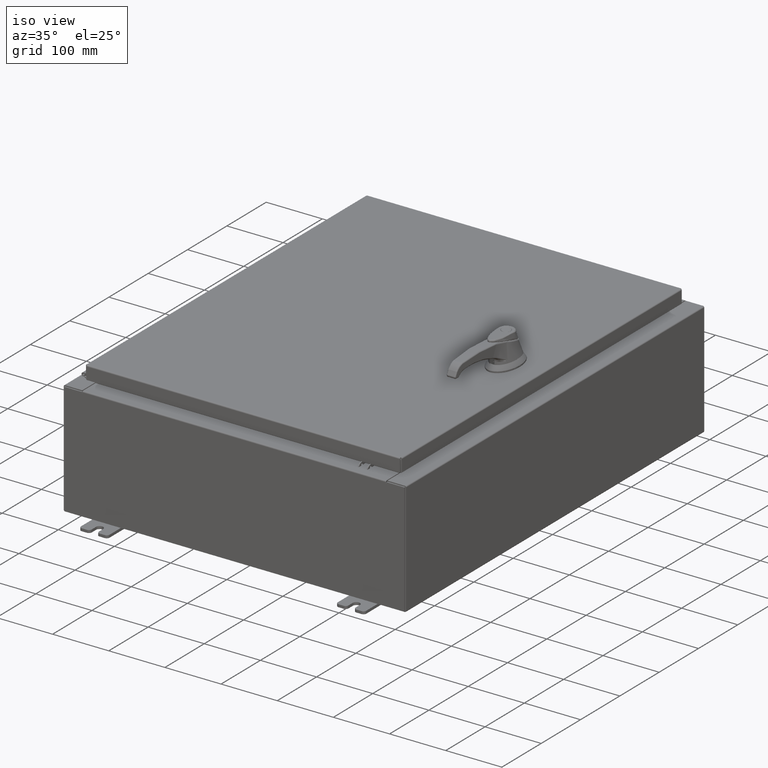
[diagram: clean part render]
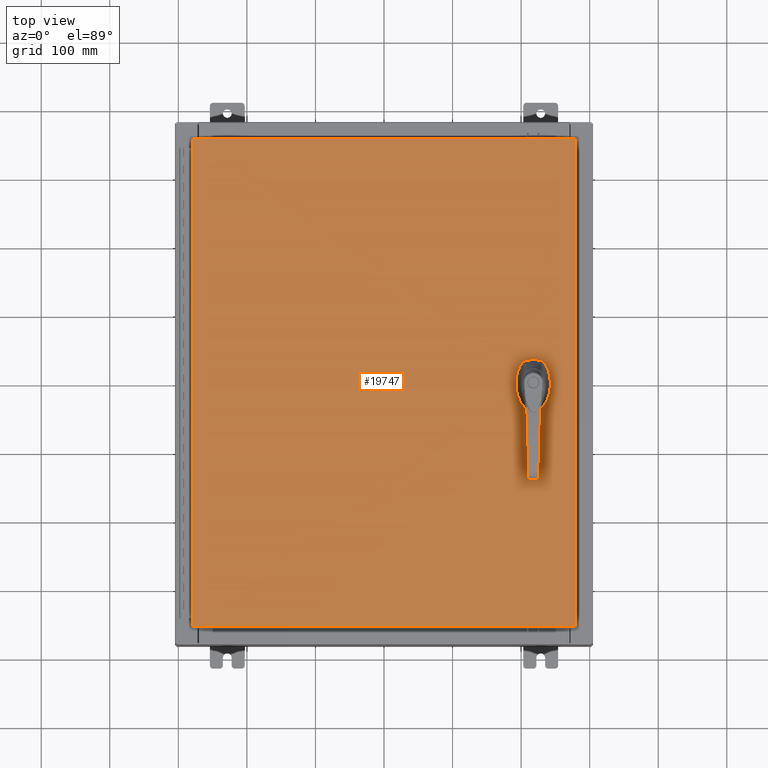
[diagram: tour spotlight — one face highlighted and labeled with its STEP entity id]
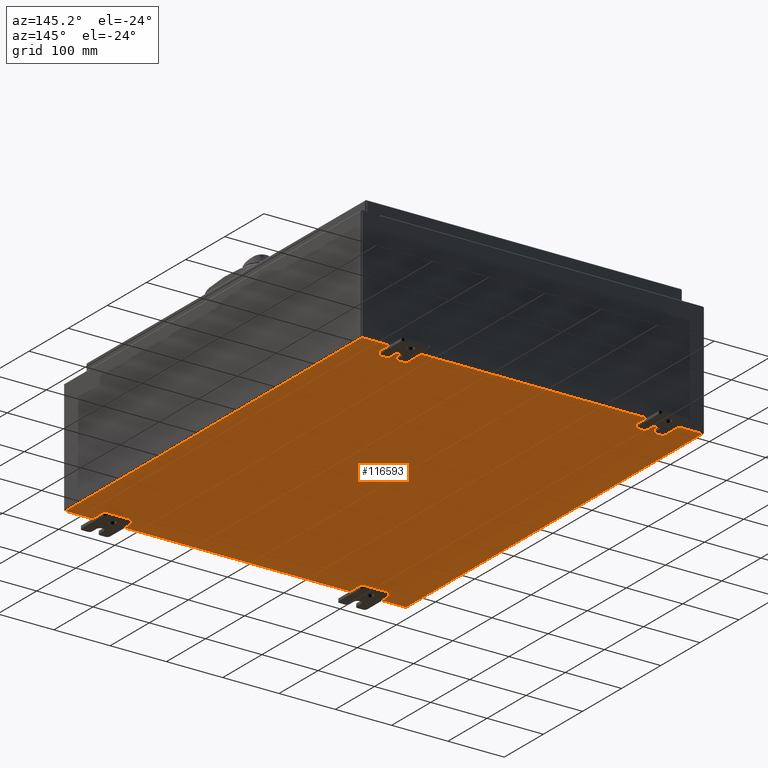
[diagram: tour spotlight — one face highlighted and labeled with its STEP entity id]
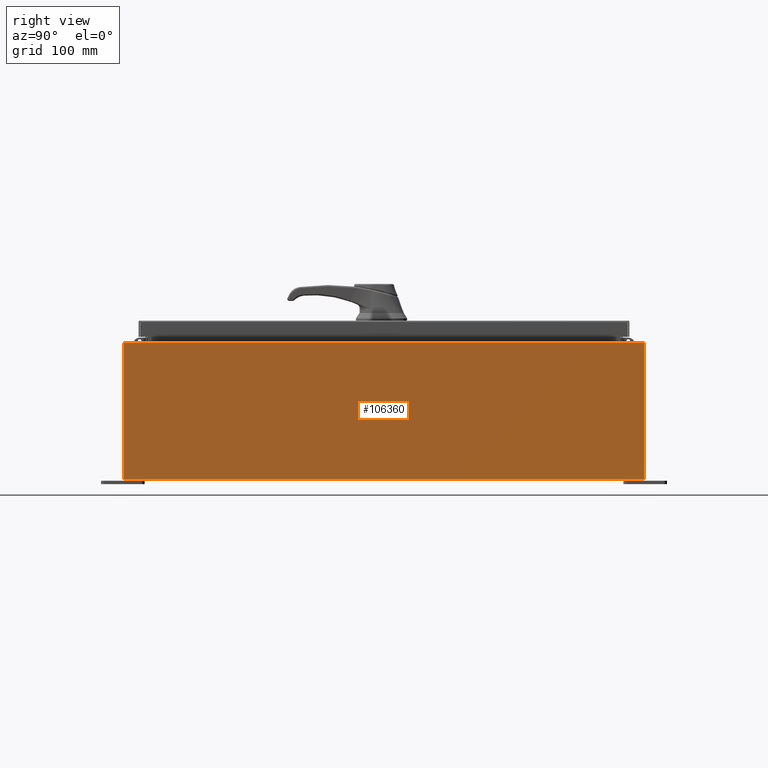
[diagram: tour spotlight — one face highlighted and labeled with its STEP entity id]
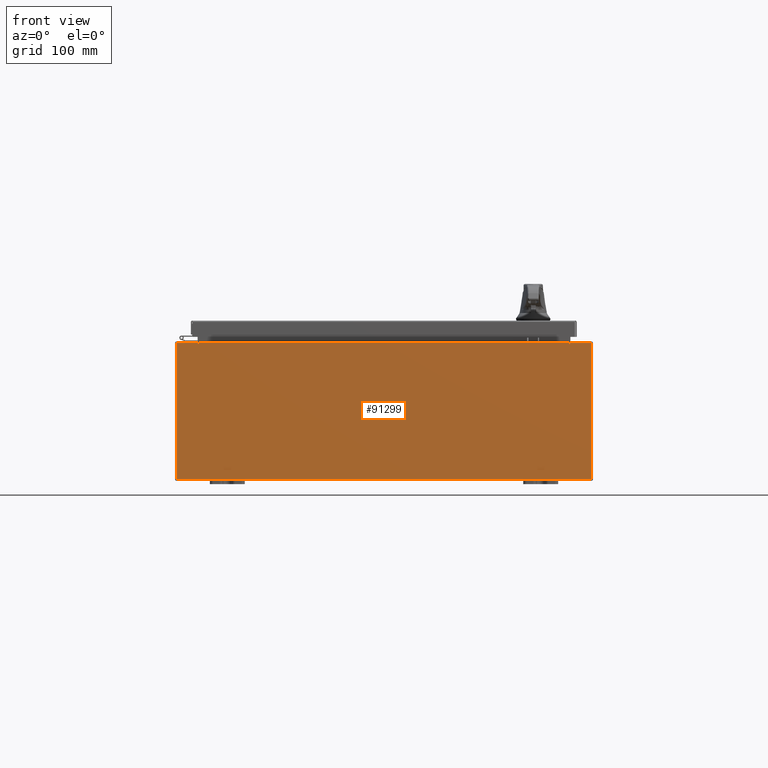
[diagram: tour spotlight — one face highlighted and labeled with its STEP entity id]
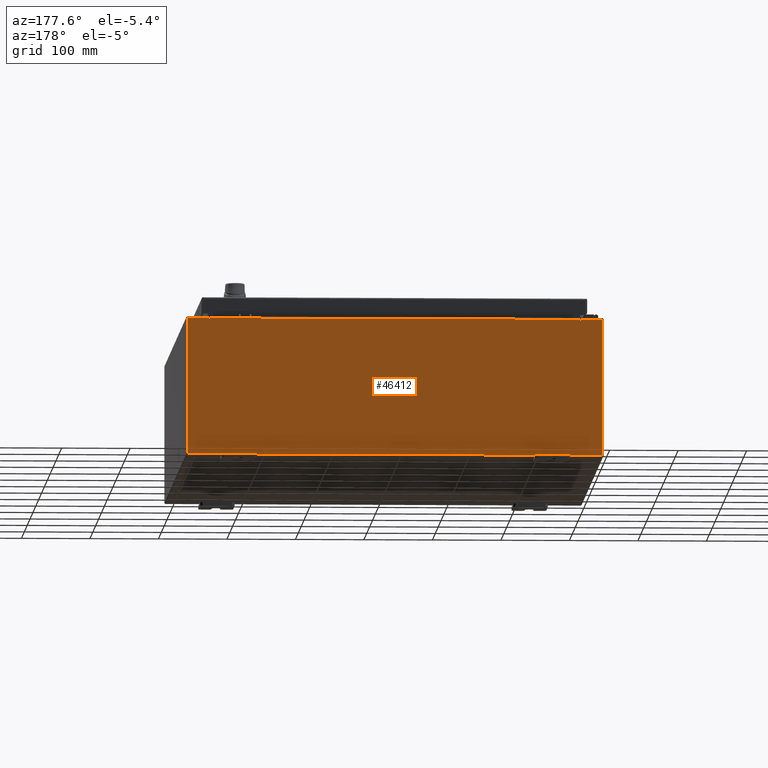
[diagram: tour spotlight — one face highlighted and labeled with its STEP entity id]
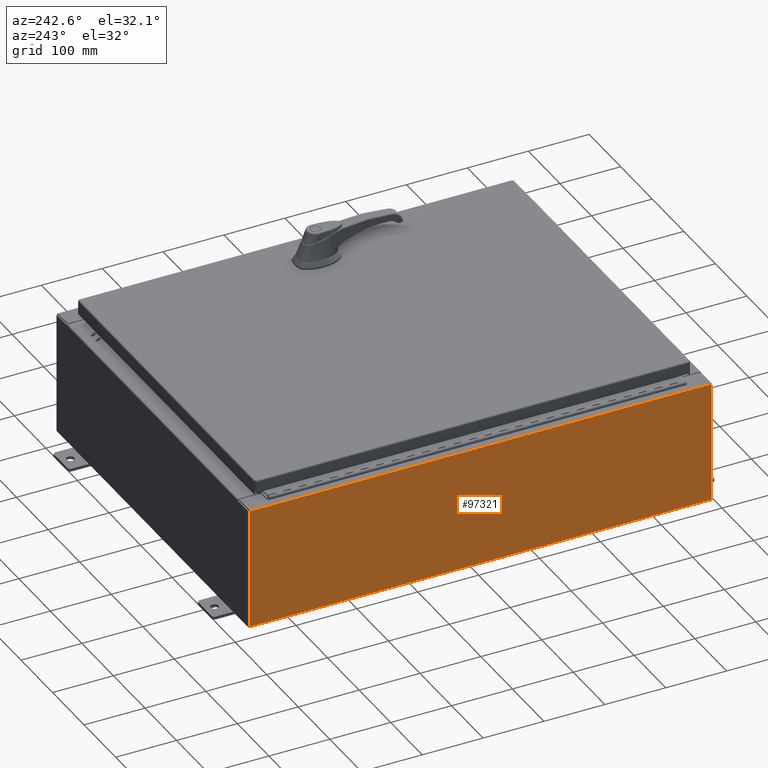
[diagram: tour spotlight — one face highlighted and labeled with its STEP entity id]
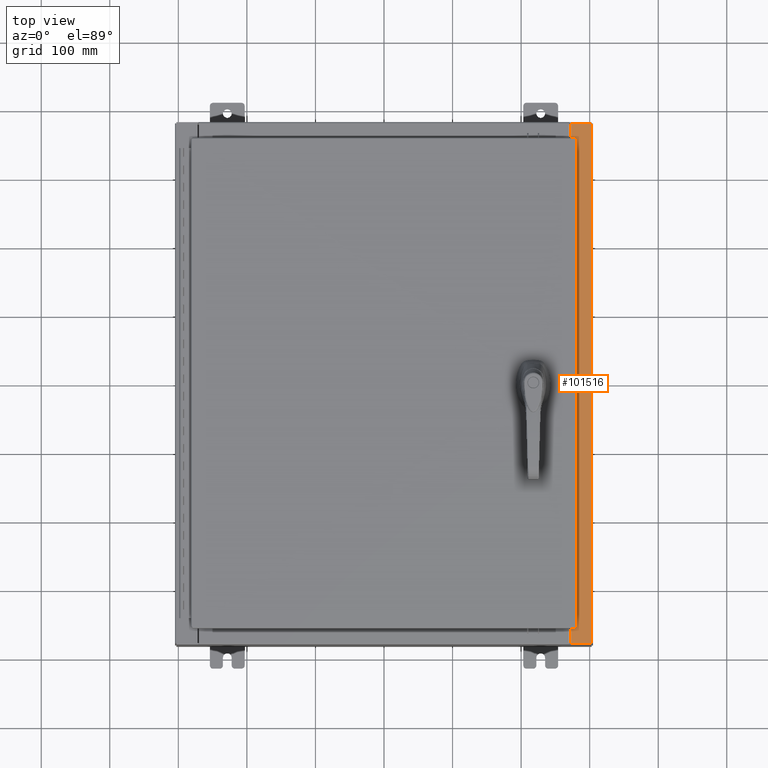
[diagram: tour spotlight — one face highlighted and labeled with its STEP entity id]
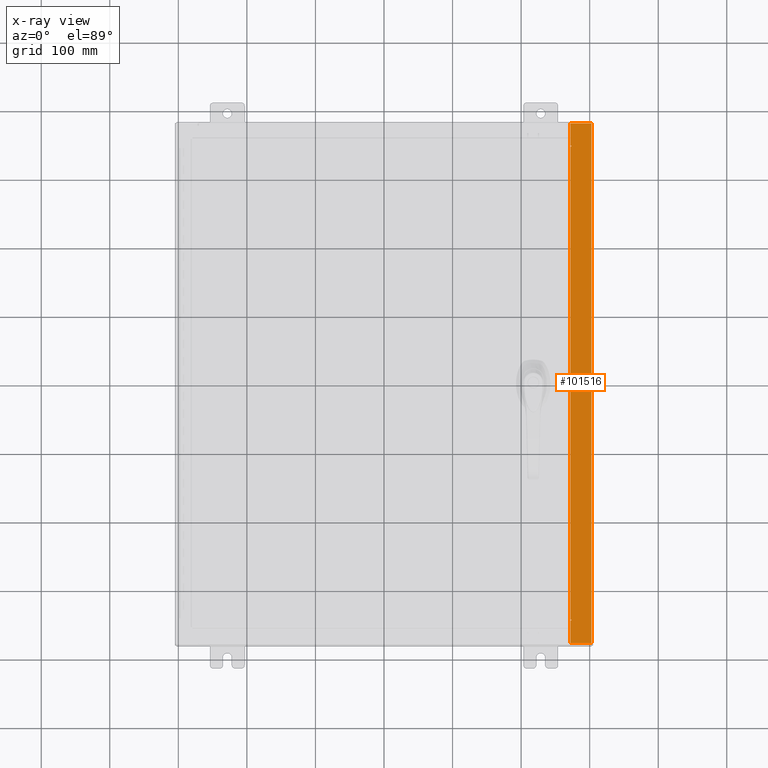
[diagram: x-ray of the same camera — body ghosted, this tour face saturated]
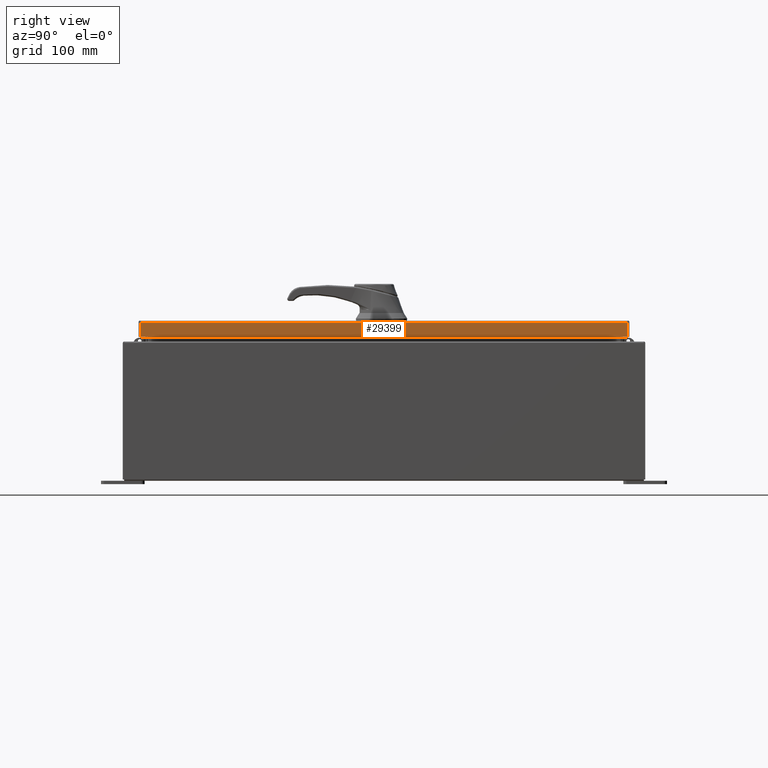
[diagram: tour spotlight — one face highlighted and labeled with its STEP entity id]
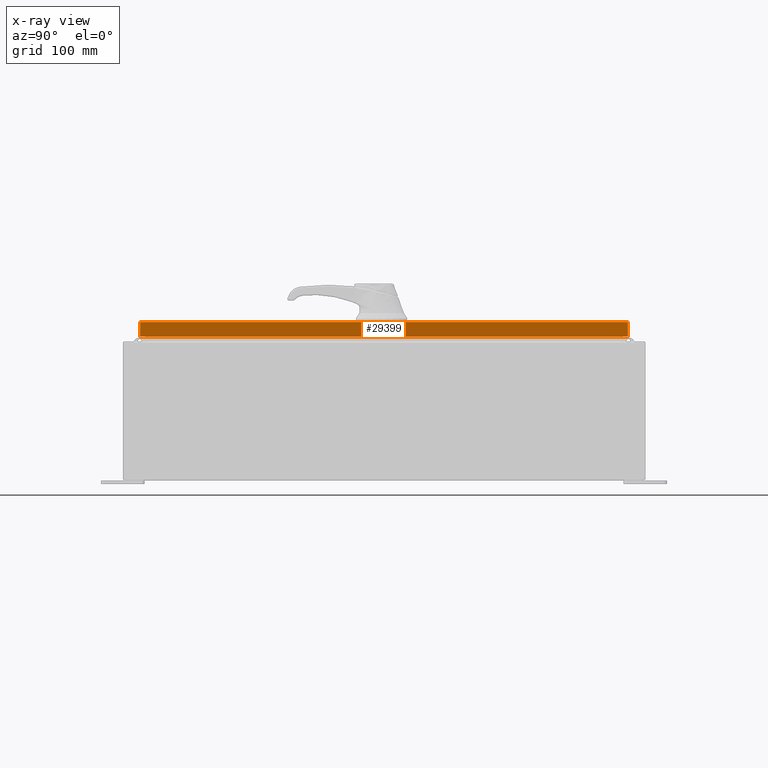
[diagram: x-ray of the same camera — body ghosted, this tour face saturated]
A machine part: a face-by-face anatomy tour. The part has 2576 B-rep faces; the first image is the clean iso view, then the 8 largest visible faces are spotlighted one at a time (largest first), each with its STEP entity span.

Face 1 — top view, entity #19747. In plain terms, the highlighted planar face has unit normal (0, 0, -1).
Definition (entity closure, byte-faithful):
#1146 = ORIENTED_EDGE ( 'NONE', *, *, #32073, .T. ) ;
#1298 = LINE ( 'NONE', #5075, #19613 ) ;
#1514 = CARTESIAN_POINT ( 'NONE',  ( 8.577999999999999400, 0.0000000000000000000, 0.0000000000000000000 ) ) ;
#2604 = VERTEX_POINT ( 'NONE', #5921 ) ;
#2879 = CARTESIAN_POINT ( 'NONE',  ( 8.577999999999999400, 0.0000000000000000000, 0.0000000000000000000 ) ) ;
#3645 = VERTEX_POINT ( 'NONE', #24648 ) ;
#4436 = DIRECTION ( 'NONE',  ( -0.0000000000000000000, 0.0000000000000000000, 1.000000000000000000 ) ) ;
#5075 = CARTESIAN_POINT ( 'NONE',  ( 0.0000000000000000000, -0.4029999999999252000, 0.0000000000000000000 ) ) ;
#5260 = CARTESIAN_POINT ( 'NONE',  ( 10.99030000000000000, -14.00629999999999800, -2.048885995248197400E-016 ) ) ;
#5636 = CARTESIAN_POINT ( 'NONE',  ( 8.577999999999999400, -1.338000000000000100, 0.0000000000000000000 ) ) ;
#5921 = CARTESIAN_POINT ( 'NONE',  ( 8.749500000000001200, -1.338000000000000100, 0.0000000000000000000 ) ) ;
#6168 = ORIENTED_EDGE ( 'NONE', *, *, #11841, .T. ) ;
#10559 = DIRECTION ( 'NONE',  ( 1.000000000000000000, 0.0000000000000000000, 0.0000000000000000000 ) ) ;
#11715 = EDGE_CURVE ( 'NONE', #95868, #3645, #48080, .T. ) ;
#11841 = EDGE_CURVE ( 'NONE', #28561, #17537, #84912, .T. ) ;
#11924 = DIRECTION ( 'NONE',  ( 1.000000000000000000, 0.0000000000000000000, 0.0000000000000000000 ) ) ;
#13569 = AXIS2_PLACEMENT_3D ( 'NONE', #5636, #68951, #14691 ) ;
#13579 = EDGE_CURVE ( 'NONE', #99507, #104714, #60608, .T. ) ;
#14070 = ORIENTED_EDGE ( 'NONE', *, *, #70926, .F. ) ;
#14142 = DIRECTION ( 'NONE',  ( 1.000000000000000000, 0.0000000000000000000, 0.0000000000000000000 ) ) ;
#14691 = DIRECTION ( 'NONE',  ( 1.000000000000000000, 0.0000000000000000000, 0.0000000000000000000 ) ) ;
#15070 = ORIENTED_EDGE ( 'NONE', *, *, #44291, .F. ) ;
#15732 = ORIENTED_EDGE ( 'NONE', *, *, #31827, .F. ) ;
#17537 = VERTEX_POINT ( 'NONE', #40582 ) ;
#18100 = EDGE_CURVE ( 'NONE', #43279, #2604, #69995, .T. ) ;
#19613 = VECTOR ( 'NONE', #14142, 39.37007874015748100 ) ;
#19747 = ADVANCED_FACE ( 'NONE', ( #99480, #30067, #102322 ), #75591, .F. ) ;
#20313 = AXIS2_PLACEMENT_3D ( 'NONE', #37249, #100614, #46350 ) ;
#21307 = DIRECTION ( 'NONE',  ( 0.0000000000000000000, 0.0000000000000000000, -1.000000000000000000 ) ) ;
#21463 = ORIENTED_EDGE ( 'NONE', *, *, #116787, .F. ) ;
#24648 = CARTESIAN_POINT ( 'NONE',  ( 8.377772629243690300, -0.4029999999999252000, 0.0000000000000000000 ) ) ;
#26315 = VERTEX_POINT ( 'NONE', #70599 ) ;
#27062 = ORIENTED_EDGE ( 'NONE', *, *, #18100, .F. ) ;
#27432 = CARTESIAN_POINT ( 'NONE',  ( -10.99029999999999600, -14.00629999999999800, -2.219626494852214000E-016 ) ) ;
#28561 = VERTEX_POINT ( 'NONE', #73226 ) ;
#29909 = DIRECTION ( 'NONE',  ( 0.0000000000000000000, -1.000000000000000000, 0.0000000000000000000 ) ) ;
#30037 = EDGE_LOOP ( 'NONE', ( #116191, #27062 ) ) ;
#30067 = FACE_OUTER_BOUND ( 'NONE', #79068, .T. ) ;
#31827 = EDGE_CURVE ( 'NONE', #57342, #95868, #102934, .T. ) ;
#32073 = EDGE_CURVE ( 'NONE', #104714, #28561, #112828, .T. ) ;
#35498 = AXIS2_PLACEMENT_3D ( 'NONE', #93766, #39474, #102842 ) ;
#35628 = CARTESIAN_POINT ( 'NONE',  ( 10.99030000000000000, 14.00629999999999800, -2.048885995248197400E-016 ) ) ;
#36415 = EDGE_LOOP ( 'NONE', ( #116038, #92584, #21463, #69611, #15732, #15070, #49694, #14070 ) ) ;
#36535 = DIRECTION ( 'NONE',  ( 1.000000000000000000, -0.0000000000000000000, -0.0000000000000000000 ) ) ;
#37249 = CARTESIAN_POINT ( 'NONE',  ( 8.577999999999999400, 0.0000000000000000000, 0.0000000000000000000 ) ) ;
#38020 = EDGE_CURVE ( 'NONE', #55193, #26315, #80472, .T. ) ;
#38818 = VERTEX_POINT ( 'NONE', #42121 ) ;
#39474 = DIRECTION ( 'NONE',  ( -0.0000000000000000000, 0.0000000000000000000, 1.000000000000000000 ) ) ;
#40582 = CARTESIAN_POINT ( 'NONE',  ( -10.99029999999999800, -14.00629999999999800, -2.048885995248197400E-016 ) ) ;
#42121 = CARTESIAN_POINT ( 'NONE',  ( 8.377772629243690300, 0.4029999999999252000, 0.0000000000000000000 ) ) ;
#43279 = VERTEX_POINT ( 'NONE', #77585 ) ;
#44291 = EDGE_CURVE ( 'NONE', #38818, #57342, #76864, .T. ) ;
#44430 = EDGE_CURVE ( 'NONE', #49876, #26315, #95257, .T. ) ;
#46350 = DIRECTION ( 'NONE',  ( 1.000000000000000000, 0.0000000000000000000, 0.0000000000000000000 ) ) ;
#48080 = CIRCLE ( 'NONE', #116412, 0.4499999999999156900 ) ;
#49011 = DIRECTION ( 'NONE',  ( 2.728745808672812900E-015, -1.000000000000000000, 0.0000000000000000000 ) ) ;
#49694 = ORIENTED_EDGE ( 'NONE', *, *, #62871, .F. ) ;
#49876 = VERTEX_POINT ( 'NONE', #85648 ) ;
#50336 = CARTESIAN_POINT ( 'NONE',  ( 8.175000000000073500, -0.2002273707563079800, 0.0000000000000000000 ) ) ;
#54204 = ORIENTED_EDGE ( 'NONE', *, *, #13579, .T. ) ;
#55193 = VERTEX_POINT ( 'NONE', #56072 ) ;
#56072 = CARTESIAN_POINT ( 'NONE',  ( 8.980999999999925300, 0.2002273707563080300, 0.0000000000000000000 ) ) ;
#56322 = VECTOR ( 'NONE', #49011, 39.37007874015748100 ) ;
#56477 = ORIENTED_EDGE ( 'NONE', *, *, #110996, .T. ) ;
#57342 = VERTEX_POINT ( 'NONE', #100737 ) ;
#58578 = CARTESIAN_POINT ( 'NONE',  ( 8.577999999999999400, 0.0000000000000000000, 0.0000000000000000000 ) ) ;
#60608 = LINE ( 'NONE', #64832, #81859 ) ;
#61330 = CARTESIAN_POINT ( 'NONE',  ( 8.778227370756310300, 0.4029999999999252000, 0.0000000000000000000 ) ) ;
#62871 = EDGE_CURVE ( 'NONE', #85724, #38818, #107599, .T. ) ;
#63693 = VECTOR ( 'NONE', #29909, 39.37007874015748100 ) ;
#64806 = DIRECTION ( 'NONE',  ( -0.0000000000000000000, 0.0000000000000000000, 1.000000000000000000 ) ) ;
#64832 = CARTESIAN_POINT ( 'NONE',  ( 10.99030000000000000, -14.00629999999999800, -2.048885995248197400E-016 ) ) ;
#65700 = CARTESIAN_POINT ( 'NONE',  ( 0.0000000000000000000, 0.0000000000000000000, 0.0000000000000000000 ) ) ;
#65764 = LINE ( 'NONE', #27432, #108203 ) ;
#66182 = DIRECTION ( 'NONE',  ( -0.0000000000000000000, 0.0000000000000000000, 1.000000000000000000 ) ) ;
#67734 = DIRECTION ( 'NONE',  ( 1.000000000000000000, 0.0000000000000000000, 0.0000000000000000000 ) ) ;
#67793 = DIRECTION ( 'NONE',  ( 0.0000000000000000000, -1.000000000000000000, 0.0000000000000000000 ) ) ;
#68052 = CARTESIAN_POINT ( 'NONE',  ( 10.99030000000000000, 14.00629999999999800, -2.048885995248197400E-016 ) ) ;
#68951 = DIRECTION ( 'NONE',  ( -0.0000000000000000000, 0.0000000000000000000, 1.000000000000000000 ) ) ;
#69611 = ORIENTED_EDGE ( 'NONE', *, *, #11715, .F. ) ;
#69995 = CIRCLE ( 'NONE', #13569, 0.1715000000000011500 ) ;
#70599 = CARTESIAN_POINT ( 'NONE',  ( 8.980999999999927000, -0.2002273707563079800, 0.0000000000000000000 ) ) ;
#70817 = CIRCLE ( 'NONE', #35498, 0.1715000000000011500 ) ;
#70926 = EDGE_CURVE ( 'NONE', #55193, #85724, #91931, .T. ) ;
#73226 = CARTESIAN_POINT ( 'NONE',  ( -10.99030000000000000, 14.00630000000000100, -2.048885995248197400E-016 ) ) ;
#75591 = PLANE ( 'NONE',  #79661 ) ;
#76864 = CIRCLE ( 'NONE', #20313, 0.4499999999999156900 ) ;
#77585 = CARTESIAN_POINT ( 'NONE',  ( 8.406499999999999400, -1.338000000000000100, 0.0000000000000000000 ) ) ;
#78754 = AXIS2_PLACEMENT_3D ( 'NONE', #58578, #4436, #67734 ) ;
#78876 = VECTOR ( 'NONE', #67793, 39.37007874015748100 ) ;
#79068 = EDGE_LOOP ( 'NONE', ( #56477, #54204, #1146, #6168 ) ) ;
#79661 = AXIS2_PLACEMENT_3D ( 'NONE', #65700, #21307, #84646 ) ;
#80472 = LINE ( 'NONE', #85083, #56322 ) ;
#81859 = VECTOR ( 'NONE', #82999, 39.37007874015748100 ) ;
#82999 = DIRECTION ( 'NONE',  ( 0.0000000000000000000, 1.000000000000000000, 0.0000000000000000000 ) ) ;
#84138 = CARTESIAN_POINT ( 'NONE',  ( -10.99030000000000000, 14.00630000000000100, -2.048885995248197400E-016 ) ) ;
#84646 = DIRECTION ( 'NONE',  ( -1.000000000000000000, 0.0000000000000000000, -0.0000000000000000000 ) ) ;
#84912 = LINE ( 'NONE', #84138, #63693 ) ;
#85083 = CARTESIAN_POINT ( 'NONE',  ( 8.980999999999925300, 2.450686610769032800E-014, 0.0000000000000000000 ) ) ;
#85648 = CARTESIAN_POINT ( 'NONE',  ( 8.778227370756310300, -0.4029999999999252000, 0.0000000000000000000 ) ) ;
#85724 = VERTEX_POINT ( 'NONE', #61330 ) ;
#87080 = AXIS2_PLACEMENT_3D ( 'NONE', #2879, #66182, #11924 ) ;
#91931 = CIRCLE ( 'NONE', #78754, 0.4499999999999156900 ) ;
#92584 = ORIENTED_EDGE ( 'NONE', *, *, #44430, .F. ) ;
#93766 = CARTESIAN_POINT ( 'NONE',  ( 8.577999999999999400, -1.338000000000000100, 0.0000000000000000000 ) ) ;
#95257 = CIRCLE ( 'NONE', #87080, 0.4499999999999156900 ) ;
#95375 = DIRECTION ( 'NONE',  ( -1.000000000000000000, 0.0000000000000000000, 0.0000000000000000000 ) ) ;
#95868 = VERTEX_POINT ( 'NONE', #50336 ) ;
#99006 = DIRECTION ( 'NONE',  ( -1.000000000000000000, -0.0000000000000000000, -0.0000000000000000000 ) ) ;
#99079 = VECTOR ( 'NONE', #95375, 39.37007874015748100 ) ;
#99480 = FACE_BOUND ( 'NONE', #30037, .T. ) ;
#99507 = VERTEX_POINT ( 'NONE', #5260 ) ;
#100614 = DIRECTION ( 'NONE',  ( -0.0000000000000000000, 0.0000000000000000000, 1.000000000000000000 ) ) ;
#100737 = CARTESIAN_POINT ( 'NONE',  ( 8.175000000000073500, 0.2002273707563079800, 0.0000000000000000000 ) ) ;
#101426 = EDGE_CURVE ( 'NONE', #2604, #43279, #70817, .T. ) ;
#102322 = FACE_BOUND ( 'NONE', #36415, .T. ) ;
#102842 = DIRECTION ( 'NONE',  ( 1.000000000000000000, 0.0000000000000000000, 0.0000000000000000000 ) ) ;
#102934 = LINE ( 'NONE', #103389, #78876 ) ;
#103389 = CARTESIAN_POINT ( 'NONE',  ( 8.175000000000073500, 0.0000000000000000000, 0.0000000000000000000 ) ) ;
#104459 = CARTESIAN_POINT ( 'NONE',  ( 0.0000000000000000000, 0.4029999999999252000, 0.0000000000000000000 ) ) ;
#104714 = VERTEX_POINT ( 'NONE', #68052 ) ;
#107599 = LINE ( 'NONE', #104459, #99079 ) ;
#108203 = VECTOR ( 'NONE', #36535, 39.37007874015748100 ) ;
#109983 = VECTOR ( 'NONE', #99006, 39.37007874015748100 ) ;
#110996 = EDGE_CURVE ( 'NONE', #17537, #99507, #65764, .T. ) ;
#112828 = LINE ( 'NONE', #35628, #109983 ) ;
#116038 = ORIENTED_EDGE ( 'NONE', *, *, #38020, .T. ) ;
#116191 = ORIENTED_EDGE ( 'NONE', *, *, #101426, .F. ) ;
#116412 = AXIS2_PLACEMENT_3D ( 'NONE', #1514, #64806, #10559 ) ;
#116787 = EDGE_CURVE ( 'NONE', #3645, #49876, #1298, .T. ) ;

Face 2 — auxiliary view, entity #116593. In plain terms, the highlighted planar face has unit normal (0, 0, -1).
Definition (entity closure, byte-faithful):
#4581 = CARTESIAN_POINT ( 'NONE',  ( -12.00000000000000500, -14.92530000000000000, -0.07470000000000000300 ) ) ;
#5200 = DIRECTION ( 'NONE',  ( -1.000000000000000000, -0.0000000000000000000, -0.0000000000000000000 ) ) ;
#6052 = EDGE_CURVE ( 'NONE', #57308, #26910, #42346, .T. ) ;
#6175 = EDGE_CURVE ( 'NONE', #114932, #14399, #82026, .T. ) ;
#7527 = DIRECTION ( 'NONE',  ( -1.000000000000000000, 0.0000000000000000000, -0.0000000000000000000 ) ) ;
#10507 = DIRECTION ( 'NONE',  ( -0.0000000000000000000, 1.000000000000000000, -0.0000000000000000000 ) ) ;
#14399 = VERTEX_POINT ( 'NONE', #21190 ) ;
#18274 = VECTOR ( 'NONE', #107129, 39.37007874015748100 ) ;
#21190 = CARTESIAN_POINT ( 'NONE',  ( -11.91230000000000500, 14.92530000000000000, -0.07470000000000000300 ) ) ;
#22314 = DIRECTION ( 'NONE',  ( 1.000000000000000000, 0.0000000000000000000, 0.0000000000000000000 ) ) ;
#24658 = EDGE_CURVE ( 'NONE', #57308, #14399, #34277, .T. ) ;
#26910 = VERTEX_POINT ( 'NONE', #85878 ) ;
#31449 = VECTOR ( 'NONE', #5200, 39.37007874015748100 ) ;
#33393 = ORIENTED_EDGE ( 'NONE', *, *, #103530, .F. ) ;
#34277 = LINE ( 'NONE', #104512, #31449 ) ;
#34775 = ORIENTED_EDGE ( 'NONE', *, *, #6175, .T. ) ;
#40474 = AXIS2_PLACEMENT_3D ( 'NONE', #106843, #61708, #7527 ) ;
#42346 = LINE ( 'NONE', #70761, #18274 ) ;
#50630 = VECTOR ( 'NONE', #22314, 39.37007874015748100 ) ;
#57308 = VERTEX_POINT ( 'NONE', #88928 ) ;
#60772 = VECTOR ( 'NONE', #10507, 39.37007874015748100 ) ;
#61708 = DIRECTION ( 'NONE',  ( 0.0000000000000000000, 0.0000000000000000000, -1.000000000000000000 ) ) ;
#62294 = ORIENTED_EDGE ( 'NONE', *, *, #24658, .F. ) ;
#64756 = CARTESIAN_POINT ( 'NONE',  ( -11.91230000000000500, -14.92530000000000000, -0.07469999999999994700 ) ) ;
#69578 = CARTESIAN_POINT ( 'NONE',  ( -11.91230000000000500, -14.92530000000000000, -0.07469999999999994700 ) ) ;
#70761 = CARTESIAN_POINT ( 'NONE',  ( 11.91229999999999700, 14.92530000000000000, -0.07470000000000226500 ) ) ;
#82026 = LINE ( 'NONE', #64756, #60772 ) ;
#85878 = CARTESIAN_POINT ( 'NONE',  ( 11.91229999999998800, -14.92530000000000000, -0.07470000000000000300 ) ) ;
#88650 = PLANE ( 'NONE',  #40474 ) ;
#88928 = CARTESIAN_POINT ( 'NONE',  ( 11.91229999999999700, 14.92530000000000000, -0.07470000000000226500 ) ) ;
#90485 = EDGE_LOOP ( 'NONE', ( #33393, #34775, #62294, #103426 ) ) ;
#98832 = LINE ( 'NONE', #4581, #50630 ) ;
#103426 = ORIENTED_EDGE ( 'NONE', *, *, #6052, .T. ) ;
#103530 = EDGE_CURVE ( 'NONE', #114932, #26910, #98832, .T. ) ;
#104512 = CARTESIAN_POINT ( 'NONE',  ( -12.00000000000000500, 14.92530000000000000, -0.07470000000000000300 ) ) ;
#106843 = CARTESIAN_POINT ( 'NONE',  ( 0.0000000000000000000, 0.0000000000000000000, -0.07470000000000000300 ) ) ;
#107129 = DIRECTION ( 'NONE',  ( -0.0000000000000000000, -1.000000000000000000, 8.208677865577646300E-017 ) ) ;
#108912 = FACE_OUTER_BOUND ( 'NONE', #90485, .T. ) ;
#114932 = VERTEX_POINT ( 'NONE', #69578 ) ;
#116593 = ADVANCED_FACE ( 'NONE', ( #108912 ), #88650, .T. ) ;

Face 3 — right view, entity #106360. In plain terms, the highlighted planar face has unit normal (-1, 0, 0).
Definition (entity closure, byte-faithful):
#2507 = ORIENTED_EDGE ( 'NONE', *, *, #17060, .F. ) ;
#4675 = EDGE_CURVE ( 'NONE', #50235, #30785, #65240, .T. ) ;
#5279 = ORIENTED_EDGE ( 'NONE', *, *, #113417, .T. ) ;
#7661 = CARTESIAN_POINT ( 'NONE',  ( 12.00000000000002500, 14.92530000000000200, 7.837599999999992100 ) ) ;
#10235 = CARTESIAN_POINT ( 'NONE',  ( 12.00000000000002500, 14.92530000000000200, 7.837599999999992100 ) ) ;
#17060 = EDGE_CURVE ( 'NONE', #58535, #72413, #78599, .T. ) ;
#18068 = CARTESIAN_POINT ( 'NONE',  ( 11.99999999999999600, 14.92530000000000000, -4.327932773236200000E-014 ) ) ;
#19061 = ORIENTED_EDGE ( 'NONE', *, *, #4675, .T. ) ;
#21508 = ORIENTED_EDGE ( 'NONE', *, *, #108073, .T. ) ;
#26194 = CARTESIAN_POINT ( 'NONE',  ( 12.00000000000002500, -14.92530000000000200, 7.837599999999998300 ) ) ;
#26634 = AXIS2_PLACEMENT_3D ( 'NONE', #31948, #66491, #50151 ) ;
#30399 = VECTOR ( 'NONE', #97352, 39.37007874015748100 ) ;
#30785 = VERTEX_POINT ( 'NONE', #26194 ) ;
#31948 = CARTESIAN_POINT ( 'NONE',  ( 11.99999999999999600, 0.0000000000000000000, -4.327932773236200000E-014 ) ) ;
#39059 = DIRECTION ( 'NONE',  ( -3.584876173029202900E-015, 0.0000000000000000000, -1.000000000000000000 ) ) ;
#41043 = PLANE ( 'NONE',  #26634 ) ;
#43079 = CARTESIAN_POINT ( 'NONE',  ( 11.99999999999999600, -14.92530000000000000, 0.01299999999999984700 ) ) ;
#44119 = LINE ( 'NONE', #18068, #65434 ) ;
#44958 = CARTESIAN_POINT ( 'NONE',  ( 11.99999999999999600, -14.92530000000000000, 0.01299999999999996600 ) ) ;
#50151 = DIRECTION ( 'NONE',  ( 3.584876173029202900E-015, 0.0000000000000000000, 1.000000000000000000 ) ) ;
#50235 = VERTEX_POINT ( 'NONE', #7661 ) ;
#53301 = LINE ( 'NONE', #93342, #98682 ) ;
#58535 = VERTEX_POINT ( 'NONE', #85056 ) ;
#60938 = EDGE_LOOP ( 'NONE', ( #19061, #21508, #2507, #5279 ) ) ;
#64469 = DIRECTION ( 'NONE',  ( -0.0000000000000000000, -1.000000000000000000, -0.0000000000000000000 ) ) ;
#65240 = LINE ( 'NONE', #10235, #89302 ) ;
#65434 = VECTOR ( 'NONE', #80661, 39.37007874015748100 ) ;
#66491 = DIRECTION ( 'NONE',  ( -1.000000000000000000, 0.0000000000000000000, 3.584876173029202900E-015 ) ) ;
#72413 = VERTEX_POINT ( 'NONE', #44958 ) ;
#74424 = FACE_OUTER_BOUND ( 'NONE', #60938, .T. ) ;
#78599 = LINE ( 'NONE', #43079, #30399 ) ;
#80661 = DIRECTION ( 'NONE',  ( 3.584876173029202900E-015, 0.0000000000000000000, 1.000000000000000000 ) ) ;
#85056 = CARTESIAN_POINT ( 'NONE',  ( 11.99999999999999600, 14.92530000000000000, 0.01299999999999766100 ) ) ;
#89302 = VECTOR ( 'NONE', #64469, 39.37007874015748100 ) ;
#93342 = CARTESIAN_POINT ( 'NONE',  ( 11.99999999999999600, -14.92530000000000000, -4.327932773236200000E-014 ) ) ;
#97352 = DIRECTION ( 'NONE',  ( 2.624627117933885000E-031, -1.000000000000000000, 7.321388497823866900E-017 ) ) ;
#98682 = VECTOR ( 'NONE', #39059, 39.37007874015748100 ) ;
#106360 = ADVANCED_FACE ( 'NONE', ( #74424 ), #41043, .F. ) ;
#108073 = EDGE_CURVE ( 'NONE', #30785, #72413, #53301, .T. ) ;
#113417 = EDGE_CURVE ( 'NONE', #58535, #50235, #44119, .T. ) ;

Face 4 — front view, entity #91299. In plain terms, the highlighted planar face has unit normal (-0, 1, -0).
Definition (entity closure, byte-faithful):
#1377 = CARTESIAN_POINT ( 'NONE',  ( -10.63720000000000400, -0.0000000000000000000, 3.874949999999999700 ) ) ;
#2990 = VECTOR ( 'NONE', #30397, 39.37007874015748100 ) ;
#3305 = VERTEX_POINT ( 'NONE', #98702 ) ;
#4164 = CARTESIAN_POINT ( 'NONE',  ( 10.65587500000000200, 0.0000000000000000000, 3.874949999999999700 ) ) ;
#4275 = PLANE ( 'NONE',  #20628 ) ;
#5161 = CARTESIAN_POINT ( 'NONE',  ( 11.92530000000000000, 0.0000000000000000000, 3.925299999999999600 ) ) ;
#8234 = CARTESIAN_POINT ( 'NONE',  ( -10.65587500000000200, 0.0000000000000000000, 3.874949999999999700 ) ) ;
#8333 = ORIENTED_EDGE ( 'NONE', *, *, #10673, .F. ) ;
#10673 = EDGE_CURVE ( 'NONE', #102529, #111424, #83640, .T. ) ;
#11060 = VECTOR ( 'NONE', #78078, 39.37007874015748100 ) ;
#11398 = CARTESIAN_POINT ( 'NONE',  ( -11.92530000000000000, 0.0000000000000000000, 3.925299999999999600 ) ) ;
#12616 = EDGE_CURVE ( 'NONE', #40427, #102529, #90480, .T. ) ;
#13217 = DIRECTION ( 'NONE',  ( 0.0000000000000000000, 0.0000000000000000000, -1.000000000000000000 ) ) ;
#13826 = CARTESIAN_POINT ( 'NONE',  ( -11.92530000000000000, 0.0000000000000000000, -3.925299999999999600 ) ) ;
#15515 = CARTESIAN_POINT ( 'NONE',  ( -10.63720000000000400, 1.024442997624098700E-016, 3.912299999999999700 ) ) ;
#16954 = VERTEX_POINT ( 'NONE', #5161 ) ;
#17308 = DIRECTION ( 'NONE',  ( 0.0000000000000000000, 0.0000000000000000000, -1.000000000000000000 ) ) ;
#18227 = VECTOR ( 'NONE', #57859, 39.37007874015748100 ) ;
#18330 = EDGE_CURVE ( 'NONE', #40530, #115099, #58583, .T. ) ;
#18616 = CARTESIAN_POINT ( 'NONE',  ( 11.92530000000000000, 0.0000000000000000000, 3.925299999999999600 ) ) ;
#20172 = ORIENTED_EDGE ( 'NONE', *, *, #70619, .T. ) ;
#20265 = CARTESIAN_POINT ( 'NONE',  ( -10.63720000000000400, 1.024442997624098700E-016, 3.912299999999999700 ) ) ;
#20628 = AXIS2_PLACEMENT_3D ( 'NONE', #94477, #85732, #31502 ) ;
#21292 = CARTESIAN_POINT ( 'NONE',  ( 10.67454999999983300, -0.0000000000000000000, -4.633366117301815000E-013 ) ) ;
#21445 = CARTESIAN_POINT ( 'NONE',  ( 11.92530000000000000, 0.0000000000000000000, -3.925299999999999600 ) ) ;
#21810 = DIRECTION ( 'NONE',  ( -0.0000000000000000000, -0.0000000000000000000, 1.000000000000000000 ) ) ;
#22608 = VERTEX_POINT ( 'NONE', #85216 ) ;
#23201 = ORIENTED_EDGE ( 'NONE', *, *, #117357, .T. ) ;
#30207 = CIRCLE ( 'NONE', #52830, 0.01867499999999949400 ) ;
#30397 = DIRECTION ( 'NONE',  ( -4.340572780400004900E-014, 0.0000000000000000000, -1.000000000000000000 ) ) ;
#30874 = VECTOR ( 'NONE', #72904, 39.37007874015748100 ) ;
#30908 = CARTESIAN_POINT ( 'NONE',  ( -11.92530000000000000, 0.0000000000000000000, 3.925299999999999600 ) ) ;
#31502 = DIRECTION ( 'NONE',  ( 0.0000000000000000000, -0.0000000000000000000, -1.000000000000000000 ) ) ;
#34492 = VECTOR ( 'NONE', #86226, 39.37007874015748100 ) ;
#35106 = LINE ( 'NONE', #15515, #11060 ) ;
#40427 = VERTEX_POINT ( 'NONE', #20265 ) ;
#40530 = VERTEX_POINT ( 'NONE', #21445 ) ;
#40898 = VECTOR ( 'NONE', #52190, 39.37007874015748100 ) ;
#41973 = AXIS2_PLACEMENT_3D ( 'NONE', #8234, #71583, #17308 ) ;
#44501 = DIRECTION ( 'NONE',  ( 0.0000000000000000000, 0.0000000000000000000, 1.000000000000000000 ) ) ;
#44531 = EDGE_CURVE ( 'NONE', #115099, #88448, #65501, .T. ) ;
#44937 = LINE ( 'NONE', #114141, #90303 ) ;
#45939 = DIRECTION ( 'NONE',  ( 1.000000000000000000, 0.0000000000000000000, 0.0000000000000000000 ) ) ;
#46088 = ORIENTED_EDGE ( 'NONE', *, *, #84398, .F. ) ;
#47219 = VECTOR ( 'NONE', #44501, 39.37007874015748100 ) ;
#50779 = FACE_OUTER_BOUND ( 'NONE', #116149, .T. ) ;
#52190 = DIRECTION ( 'NONE',  ( 1.000000000000000000, 0.0000000000000000000, 0.0000000000000000000 ) ) ;
#52830 = AXIS2_PLACEMENT_3D ( 'NONE', #4164, #67479, #13217 ) ;
#52853 = CARTESIAN_POINT ( 'NONE',  ( -11.92530000000000000, 0.0000000000000000000, -3.925299999999999600 ) ) ;
#57859 = DIRECTION ( 'NONE',  ( 0.0000000000000000000, 0.0000000000000000000, -1.000000000000000000 ) ) ;
#58583 = LINE ( 'NONE', #13826, #34492 ) ;
#59502 = DIRECTION ( 'NONE',  ( 0.0000000000000000000, 0.0000000000000000000, 1.000000000000000000 ) ) ;
#60806 = VECTOR ( 'NONE', #45939, 39.37007874015748100 ) ;
#62181 = LINE ( 'NONE', #106449, #40898 ) ;
#62639 = VECTOR ( 'NONE', #21810, 39.37007874015748100 ) ;
#65501 = LINE ( 'NONE', #30908, #62639 ) ;
#67479 = DIRECTION ( 'NONE',  ( -0.0000000000000000000, 1.000000000000000000, -0.0000000000000000000 ) ) ;
#67700 = CARTESIAN_POINT ( 'NONE',  ( -10.67455000000000200, 0.0000000000000000000, 3.874949999999999700 ) ) ;
#68205 = CARTESIAN_POINT ( 'NONE',  ( 10.67455000000000200, 0.0000000000000000000, 3.925299999999999600 ) ) ;
#69084 = VERTEX_POINT ( 'NONE', #87078 ) ;
#70326 = ORIENTED_EDGE ( 'NONE', *, *, #71985, .T. ) ;
#70360 = ORIENTED_EDGE ( 'NONE', *, *, #44531, .T. ) ;
#70619 = EDGE_CURVE ( 'NONE', #88448, #3305, #84882, .T. ) ;
#71583 = DIRECTION ( 'NONE',  ( -0.0000000000000000000, 1.000000000000000000, -0.0000000000000000000 ) ) ;
#71985 = EDGE_CURVE ( 'NONE', #40427, #69084, #35106, .T. ) ;
#72370 = LINE ( 'NONE', #21292, #2990 ) ;
#72904 = DIRECTION ( 'NONE',  ( 0.0000000000000000000, 0.0000000000000000000, -1.000000000000000000 ) ) ;
#78078 = DIRECTION ( 'NONE',  ( 1.000000000000000000, 0.0000000000000000000, 0.0000000000000000000 ) ) ;
#83640 = CIRCLE ( 'NONE', #41973, 0.01867499999999949400 ) ;
#84398 = EDGE_CURVE ( 'NONE', #22608, #69084, #92578, .T. ) ;
#84750 = EDGE_CURVE ( 'NONE', #89559, #22608, #30207, .T. ) ;
#84882 = LINE ( 'NONE', #100189, #60806 ) ;
#85216 = CARTESIAN_POINT ( 'NONE',  ( 10.63720000000000400, 0.0000000000000000000, 3.874949999999999700 ) ) ;
#85732 = DIRECTION ( 'NONE',  ( 0.0000000000000000000, -1.000000000000000000, 0.0000000000000000000 ) ) ;
#86226 = DIRECTION ( 'NONE',  ( -1.000000000000000000, -0.0000000000000000000, -0.0000000000000000000 ) ) ;
#87078 = CARTESIAN_POINT ( 'NONE',  ( 10.63720000000000400, 0.0000000000000000000, 3.912299999999999700 ) ) ;
#87554 = LINE ( 'NONE', #18616, #30874 ) ;
#88448 = VERTEX_POINT ( 'NONE', #11398 ) ;
#89559 = VERTEX_POINT ( 'NONE', #102376 ) ;
#90303 = VECTOR ( 'NONE', #59502, 39.37007874015748100 ) ;
#90480 = LINE ( 'NONE', #93917, #18227 ) ;
#91055 = EDGE_CURVE ( 'NONE', #92177, #16954, #62181, .T. ) ;
#91299 = ADVANCED_FACE ( 'NONE', ( #50779 ), #4275, .F. ) ;
#92177 = VERTEX_POINT ( 'NONE', #68205 ) ;
#92578 = LINE ( 'NONE', #98780, #47219 ) ;
#93917 = CARTESIAN_POINT ( 'NONE',  ( -10.63720000000000400, -0.0000000000000000000, 0.0000000000000000000 ) ) ;
#94477 = CARTESIAN_POINT ( 'NONE',  ( 0.0000000000000000000, 0.0000000000000000000, 0.0000000000000000000 ) ) ;
#98702 = CARTESIAN_POINT ( 'NONE',  ( -10.67455000000000200, 0.0000000000000000000, 3.925299999999999600 ) ) ;
#98780 = CARTESIAN_POINT ( 'NONE',  ( 10.63720000000000400, 0.0000000000000000000, 0.0000000000000000000 ) ) ;
#98840 = EDGE_CURVE ( 'NONE', #92177, #89559, #72370, .T. ) ;
#100189 = CARTESIAN_POINT ( 'NONE',  ( -11.92530000000000000, 0.0000000000000000000, 3.925299999999999600 ) ) ;
#100897 = ORIENTED_EDGE ( 'NONE', *, *, #98840, .F. ) ;
#102376 = CARTESIAN_POINT ( 'NONE',  ( 10.67455000000000200, 0.0000000000000000000, 3.874949999999999700 ) ) ;
#102529 = VERTEX_POINT ( 'NONE', #1377 ) ;
#103636 = EDGE_CURVE ( 'NONE', #111424, #3305, #44937, .T. ) ;
#104929 = ORIENTED_EDGE ( 'NONE', *, *, #18330, .T. ) ;
#106449 = CARTESIAN_POINT ( 'NONE',  ( -11.92530000000000000, 0.0000000000000000000, 3.925299999999999600 ) ) ;
#110586 = ORIENTED_EDGE ( 'NONE', *, *, #12616, .F. ) ;
#111366 = ORIENTED_EDGE ( 'NONE', *, *, #103636, .F. ) ;
#111424 = VERTEX_POINT ( 'NONE', #67700 ) ;
#114141 = CARTESIAN_POINT ( 'NONE',  ( -10.67455000000000200, -0.0000000000000000000, 0.0000000000000000000 ) ) ;
#114287 = ORIENTED_EDGE ( 'NONE', *, *, #84750, .F. ) ;
#115080 = ORIENTED_EDGE ( 'NONE', *, *, #91055, .T. ) ;
#115099 = VERTEX_POINT ( 'NONE', #52853 ) ;
#116149 = EDGE_LOOP ( 'NONE', ( #111366, #8333, #110586, #70326, #46088, #114287, #100897, #115080, #23201, #104929, #70360, #20172 ) ) ;
#117357 = EDGE_CURVE ( 'NONE', #16954, #40530, #87554, .T. ) ;

Face 5 — auxiliary view, entity #46412. In plain terms, the highlighted planar face has unit normal (0, -1, 0).
Definition (entity closure, byte-faithful):
#1549 = VERTEX_POINT ( 'NONE', #91073 ) ;
#4633 = ORIENTED_EDGE ( 'NONE', *, *, #11922, .T. ) ;
#5049 = DIRECTION ( 'NONE',  ( 0.0000000000000000000, 0.0000000000000000000, -1.000000000000000000 ) ) ;
#5544 = LINE ( 'NONE', #94932, #74919 ) ;
#7115 = CARTESIAN_POINT ( 'NONE',  ( 0.0000000000000000000, 0.0000000000000000000, 0.0000000000000000000 ) ) ;
#7303 = CARTESIAN_POINT ( 'NONE',  ( 10.63720000000000400, 0.0000000000000000000, 3.912299999999999700 ) ) ;
#7503 = CARTESIAN_POINT ( 'NONE',  ( 11.92530000000000000, 0.0000000000000000000, 3.925299999999999600 ) ) ;
#8243 = DIRECTION ( 'NONE',  ( 0.0000000000000000000, -0.0000000000000000000, -1.000000000000000000 ) ) ;
#9844 = VECTOR ( 'NONE', #57599, 39.37007874015748100 ) ;
#10578 = AXIS2_PLACEMENT_3D ( 'NONE', #48730, #112125, #57860 ) ;
#11192 = CARTESIAN_POINT ( 'NONE',  ( 10.65587500000000200, 0.0000000000000000000, 3.874949999999999700 ) ) ;
#11334 = ORIENTED_EDGE ( 'NONE', *, *, #70021, .T. ) ;
#11922 = EDGE_CURVE ( 'NONE', #111850, #1549, #106165, .T. ) ;
#12969 = DIRECTION ( 'NONE',  ( 0.0000000000000000000, 0.0000000000000000000, 1.000000000000000000 ) ) ;
#13458 = VERTEX_POINT ( 'NONE', #45379 ) ;
#13825 = ORIENTED_EDGE ( 'NONE', *, *, #84044, .F. ) ;
#17619 = EDGE_CURVE ( 'NONE', #96068, #111850, #71455, .T. ) ;
#18173 = VECTOR ( 'NONE', #93370, 39.37007874015748100 ) ;
#20271 = DIRECTION ( 'NONE',  ( 0.0000000000000000000, 0.0000000000000000000, -1.000000000000000000 ) ) ;
#20507 = CARTESIAN_POINT ( 'NONE',  ( -10.63720000000000400, -0.0000000000000000000, 0.0000000000000000000 ) ) ;
#21288 = CARTESIAN_POINT ( 'NONE',  ( -10.67455000000000200, 0.0000000000000000000, 3.874949999999999700 ) ) ;
#23242 = VECTOR ( 'NONE', #5049, 39.37007874015748100 ) ;
#24331 = ORIENTED_EDGE ( 'NONE', *, *, #71297, .T. ) ;
#28227 = CARTESIAN_POINT ( 'NONE',  ( 10.63720000000000400, 0.0000000000000000000, 3.874949999999999700 ) ) ;
#29523 = CIRCLE ( 'NONE', #97815, 0.01867499999999949400 ) ;
#30743 = ORIENTED_EDGE ( 'NONE', *, *, #84173, .F. ) ;
#36978 = DIRECTION ( 'NONE',  ( 1.000000000000000000, 0.0000000000000000000, 0.0000000000000000000 ) ) ;
#37338 = VECTOR ( 'NONE', #40993, 39.37007874015748100 ) ;
#38823 = CARTESIAN_POINT ( 'NONE',  ( -10.63720000000000400, -0.0000000000000000000, 3.874949999999999700 ) ) ;
#40185 = VECTOR ( 'NONE', #12969, 39.37007874015748100 ) ;
#40993 = DIRECTION ( 'NONE',  ( 0.0000000000000000000, 0.0000000000000000000, 1.000000000000000000 ) ) ;
#41356 = VERTEX_POINT ( 'NONE', #76998 ) ;
#44909 = VERTEX_POINT ( 'NONE', #113533 ) ;
#45379 = CARTESIAN_POINT ( 'NONE',  ( -10.67455000000000200, 0.0000000000000000000, 3.925299999999999600 ) ) ;
#46412 = ADVANCED_FACE ( 'NONE', ( #60513 ), #116688, .F. ) ;
#48401 = CARTESIAN_POINT ( 'NONE',  ( -10.63720000000000400, 1.024442997624098700E-016, 3.912299999999999700 ) ) ;
#48730 = CARTESIAN_POINT ( 'NONE',  ( -10.65587500000000200, 0.0000000000000000000, 3.874949999999999700 ) ) ;
#49524 = VECTOR ( 'NONE', #111793, 39.37007874015748100 ) ;
#51523 = AXIS2_PLACEMENT_3D ( 'NONE', #7115, #62471, #8243 ) ;
#51823 = ORIENTED_EDGE ( 'NONE', *, *, #115102, .F. ) ;
#52122 = LINE ( 'NONE', #83191, #97487 ) ;
#52200 = ORIENTED_EDGE ( 'NONE', *, *, #57472, .F. ) ;
#56401 = EDGE_CURVE ( 'NONE', #93307, #13458, #52122, .T. ) ;
#56850 = ORIENTED_EDGE ( 'NONE', *, *, #102583, .F. ) ;
#57211 = CARTESIAN_POINT ( 'NONE',  ( -11.92530000000000000, 0.0000000000000000000, -3.925299999999999600 ) ) ;
#57472 = EDGE_CURVE ( 'NONE', #41356, #116140, #66410, .T. ) ;
#57599 = DIRECTION ( 'NONE',  ( -1.000000000000000000, -0.0000000000000000000, -0.0000000000000000000 ) ) ;
#57860 = DIRECTION ( 'NONE',  ( 0.0000000000000000000, 0.0000000000000000000, -1.000000000000000000 ) ) ;
#59207 = CARTESIAN_POINT ( 'NONE',  ( 11.92530000000000000, 0.0000000000000000000, 3.925299999999999600 ) ) ;
#60513 = FACE_OUTER_BOUND ( 'NONE', #104928, .T. ) ;
#61807 = VERTEX_POINT ( 'NONE', #28227 ) ;
#61988 = DIRECTION ( 'NONE',  ( -4.340572780400004900E-014, 0.0000000000000000000, -1.000000000000000000 ) ) ;
#62471 = DIRECTION ( 'NONE',  ( 0.0000000000000000000, -1.000000000000000000, 0.0000000000000000000 ) ) ;
#64317 = LINE ( 'NONE', #76314, #40185 ) ;
#66410 = LINE ( 'NONE', #20507, #18173 ) ;
#70021 = EDGE_CURVE ( 'NONE', #41356, #99471, #103409, .T. ) ;
#70899 = VECTOR ( 'NONE', #61988, 39.37007874015748100 ) ;
#71297 = EDGE_CURVE ( 'NONE', #1549, #93307, #5544, .T. ) ;
#71455 = LINE ( 'NONE', #59207, #23242 ) ;
#72362 = CARTESIAN_POINT ( 'NONE',  ( 11.92530000000000000, 0.0000000000000000000, -3.925299999999999600 ) ) ;
#73070 = CARTESIAN_POINT ( 'NONE',  ( -11.92530000000000000, 0.0000000000000000000, 3.925299999999999600 ) ) ;
#74533 = DIRECTION ( 'NONE',  ( -0.0000000000000000000, 1.000000000000000000, -0.0000000000000000000 ) ) ;
#74919 = VECTOR ( 'NONE', #104006, 39.37007874015748100 ) ;
#76178 = ORIENTED_EDGE ( 'NONE', *, *, #17619, .T. ) ;
#76314 = CARTESIAN_POINT ( 'NONE',  ( 10.63720000000000400, 0.0000000000000000000, 0.0000000000000000000 ) ) ;
#76998 = CARTESIAN_POINT ( 'NONE',  ( -10.63720000000000400, 1.024442997624098700E-016, 3.912299999999999700 ) ) ;
#77842 = VECTOR ( 'NONE', #36978, 39.37007874015748100 ) ;
#79843 = CARTESIAN_POINT ( 'NONE',  ( 10.67454999999983300, -0.0000000000000000000, -4.633366117301815000E-013 ) ) ;
#80980 = ORIENTED_EDGE ( 'NONE', *, *, #89081, .T. ) ;
#83191 = CARTESIAN_POINT ( 'NONE',  ( -11.92530000000000000, 0.0000000000000000000, 3.925299999999999600 ) ) ;
#83571 = DIRECTION ( 'NONE',  ( 1.000000000000000000, 0.0000000000000000000, 0.0000000000000000000 ) ) ;
#84044 = EDGE_CURVE ( 'NONE', #61807, #99471, #64317, .T. ) ;
#84173 = EDGE_CURVE ( 'NONE', #109883, #13458, #106779, .T. ) ;
#85057 = ORIENTED_EDGE ( 'NONE', *, *, #102729, .F. ) ;
#85558 = CARTESIAN_POINT ( 'NONE',  ( 10.67455000000000200, 0.0000000000000000000, 3.925299999999999600 ) ) ;
#89081 = EDGE_CURVE ( 'NONE', #100811, #96068, #101883, .T. ) ;
#90416 = CIRCLE ( 'NONE', #10578, 0.01867499999999949400 ) ;
#91073 = CARTESIAN_POINT ( 'NONE',  ( -11.92530000000000000, 0.0000000000000000000, -3.925299999999999600 ) ) ;
#93246 = CARTESIAN_POINT ( 'NONE',  ( -11.92530000000000000, 0.0000000000000000000, 3.925299999999999600 ) ) ;
#93307 = VERTEX_POINT ( 'NONE', #93246 ) ;
#93370 = DIRECTION ( 'NONE',  ( 0.0000000000000000000, 0.0000000000000000000, -1.000000000000000000 ) ) ;
#94932 = CARTESIAN_POINT ( 'NONE',  ( -11.92530000000000000, 0.0000000000000000000, 3.925299999999999600 ) ) ;
#94960 = LINE ( 'NONE', #79843, #70899 ) ;
#96068 = VERTEX_POINT ( 'NONE', #7503 ) ;
#96274 = ORIENTED_EDGE ( 'NONE', *, *, #56401, .T. ) ;
#97487 = VECTOR ( 'NONE', #83571, 39.37007874015748100 ) ;
#97815 = AXIS2_PLACEMENT_3D ( 'NONE', #11192, #74533, #20271 ) ;
#99471 = VERTEX_POINT ( 'NONE', #7303 ) ;
#100811 = VERTEX_POINT ( 'NONE', #85558 ) ;
#101883 = LINE ( 'NONE', #73070, #77842 ) ;
#102583 = EDGE_CURVE ( 'NONE', #44909, #61807, #29523, .T. ) ;
#102729 = EDGE_CURVE ( 'NONE', #116140, #109883, #90416, .T. ) ;
#103409 = LINE ( 'NONE', #48401, #49524 ) ;
#104006 = DIRECTION ( 'NONE',  ( -0.0000000000000000000, -0.0000000000000000000, 1.000000000000000000 ) ) ;
#104374 = CARTESIAN_POINT ( 'NONE',  ( -10.67455000000000200, -0.0000000000000000000, 0.0000000000000000000 ) ) ;
#104928 = EDGE_LOOP ( 'NONE', ( #30743, #85057, #52200, #11334, #13825, #56850, #51823, #80980, #76178, #4633, #24331, #96274 ) ) ;
#106165 = LINE ( 'NONE', #57211, #9844 ) ;
#106779 = LINE ( 'NONE', #104374, #37338 ) ;
#109883 = VERTEX_POINT ( 'NONE', #21288 ) ;
#111793 = DIRECTION ( 'NONE',  ( 1.000000000000000000, 0.0000000000000000000, 0.0000000000000000000 ) ) ;
#111850 = VERTEX_POINT ( 'NONE', #72362 ) ;
#112125 = DIRECTION ( 'NONE',  ( -0.0000000000000000000, 1.000000000000000000, -0.0000000000000000000 ) ) ;
#113533 = CARTESIAN_POINT ( 'NONE',  ( 10.67455000000000200, 0.0000000000000000000, 3.874949999999999700 ) ) ;
#115102 = EDGE_CURVE ( 'NONE', #100811, #44909, #94960, .T. ) ;
#116140 = VERTEX_POINT ( 'NONE', #38823 ) ;
#116688 = PLANE ( 'NONE',  #51523 ) ;

Face 6 — auxiliary view, entity #97321. In plain terms, the highlighted planar face has unit normal (1, 0, 0).
Definition (entity closure, byte-faithful):
#6602 = VERTEX_POINT ( 'NONE', #80099 ) ;
#12582 = DIRECTION ( 'NONE',  ( -0.0000000000000000000, 1.000000000000000000, -0.0000000000000000000 ) ) ;
#13078 = VECTOR ( 'NONE', #112839, 39.37007874015748100 ) ;
#13965 = VERTEX_POINT ( 'NONE', #76780 ) ;
#16904 = DIRECTION ( 'NONE',  ( -3.584876173029202900E-015, 0.0000000000000000000, 1.000000000000000000 ) ) ;
#18196 = EDGE_CURVE ( 'NONE', #6602, #96322, #40151, .T. ) ;
#18481 = CARTESIAN_POINT ( 'NONE',  ( -12.00000000000000500, 14.92530000000000000, 0.01299999999999983600 ) ) ;
#19398 = AXIS2_PLACEMENT_3D ( 'NONE', #72583, #82041, #27758 ) ;
#21743 = DIRECTION ( 'NONE',  ( 3.584876173029202900E-015, 0.0000000000000000000, -1.000000000000000000 ) ) ;
#22996 = EDGE_CURVE ( 'NONE', #13965, #57593, #98271, .T. ) ;
#24624 = EDGE_CURVE ( 'NONE', #57593, #6602, #58369, .T. ) ;
#25999 = CARTESIAN_POINT ( 'NONE',  ( -12.00000000000000500, -14.92530000000000000, -4.327932773236203200E-014 ) ) ;
#27758 = DIRECTION ( 'NONE',  ( 3.584876173029202900E-015, 0.0000000000000000000, -1.000000000000000000 ) ) ;
#40151 = LINE ( 'NONE', #85078, #43006 ) ;
#40635 = ORIENTED_EDGE ( 'NONE', *, *, #18196, .T. ) ;
#42779 = FACE_OUTER_BOUND ( 'NONE', #96597, .T. ) ;
#43006 = VECTOR ( 'NONE', #21743, 39.37007874015748100 ) ;
#49186 = EDGE_CURVE ( 'NONE', #13965, #96322, #111201, .T. ) ;
#51366 = ORIENTED_EDGE ( 'NONE', *, *, #49186, .F. ) ;
#54673 = PLANE ( 'NONE',  #19398 ) ;
#57593 = VERTEX_POINT ( 'NONE', #85034 ) ;
#58369 = LINE ( 'NONE', #95435, #13078 ) ;
#68887 = ORIENTED_EDGE ( 'NONE', *, *, #24624, .T. ) ;
#72583 = CARTESIAN_POINT ( 'NONE',  ( -12.00000000000000500, 0.0000000000000000000, -4.327932773236203200E-014 ) ) ;
#76780 = CARTESIAN_POINT ( 'NONE',  ( -12.00000000000000500, -14.92530000000000000, 0.01299999999999984700 ) ) ;
#77029 = VECTOR ( 'NONE', #16904, 39.37007874015748100 ) ;
#80099 = CARTESIAN_POINT ( 'NONE',  ( -12.00000000000003400, 14.92530000000000000, 7.837599999999999200 ) ) ;
#82041 = DIRECTION ( 'NONE',  ( 1.000000000000000000, 0.0000000000000000000, 3.584876173029202900E-015 ) ) ;
#85034 = CARTESIAN_POINT ( 'NONE',  ( -12.00000000000003400, -14.92530000000000000, 7.837599999999999200 ) ) ;
#85078 = CARTESIAN_POINT ( 'NONE',  ( -12.00000000000000500, 14.92530000000000000, -4.327932773236203200E-014 ) ) ;
#95435 = CARTESIAN_POINT ( 'NONE',  ( -12.00000000000003400, -14.92530000000000000, 7.837599999999999200 ) ) ;
#96322 = VERTEX_POINT ( 'NONE', #18481 ) ;
#96597 = EDGE_LOOP ( 'NONE', ( #68887, #40635, #51366, #113687 ) ) ;
#97321 = ADVANCED_FACE ( 'NONE', ( #42779 ), #54673, .F. ) ;
#98271 = LINE ( 'NONE', #25999, #77029 ) ;
#108335 = VECTOR ( 'NONE', #12582, 39.37007874015748100 ) ;
#111201 = LINE ( 'NONE', #111947, #108335 ) ;
#111947 = CARTESIAN_POINT ( 'NONE',  ( -12.00000000000000500, 14.92530000000000000, 0.01299999999999984700 ) ) ;
#112839 = DIRECTION ( 'NONE',  ( 0.0000000000000000000, 1.000000000000000000, 0.0000000000000000000 ) ) ;
#113687 = ORIENTED_EDGE ( 'NONE', *, *, #22996, .T. ) ;

Face 7 — top view, entity #101516. An x-ray twin of the same camera follows (body ghosted, this face saturated) — the face is partly hidden behind the body. In plain terms, the highlighted planar face has unit normal (-0, 0, -1).
Definition (entity closure, byte-faithful):
#1988 = CIRCLE ( 'NONE', #61198, 0.01867499999999949400 ) ;
#3847 = VECTOR ( 'NONE', #18477, 39.37007874015748100 ) ;
#4004 = CARTESIAN_POINT ( 'NONE',  ( 7.633858978166036100E-014, -14.92530000000002300, 7.925300000000073700 ) ) ;
#4305 = ORIENTED_EDGE ( 'NONE', *, *, #84509, .F. ) ;
#4604 = DIRECTION ( 'NONE',  ( -1.000000000000000000, 0.0000000000000000000, 6.241167087353087800E-015 ) ) ;
#6066 = VERTEX_POINT ( 'NONE', #45307 ) ;
#8634 = VECTOR ( 'NONE', #67312, 39.37007874015748100 ) ;
#12599 = CARTESIAN_POINT ( 'NONE',  ( 4.972393517341145600E-014, 0.0000000000000000000, 7.925300000000073700 ) ) ;
#13677 = VERTEX_POINT ( 'NONE', #65616 ) ;
#17844 = EDGE_CURVE ( 'NONE', #85784, #94176, #60048, .T. ) ;
#18477 = DIRECTION ( 'NONE',  ( -1.000000000000000000, 0.0000000000000000000, 0.0000000000000000000 ) ) ;
#19012 = VERTEX_POINT ( 'NONE', #38457 ) ;
#19591 = EDGE_LOOP ( 'NONE', ( #66917, #61848, #42773, #62076, #59859, #36882, #106257, #4305, #56148, #110520, #53531, #109020 ) ) ;
#20794 = VECTOR ( 'NONE', #21458, 39.37007874015748100 ) ;
#21458 = DIRECTION ( 'NONE',  ( 1.000000000000000000, 0.0000000000000000000, 0.0000000000000000000 ) ) ;
#22190 = LINE ( 'NONE', #91330, #115691 ) ;
#23116 = VERTEX_POINT ( 'NONE', #64803 ) ;
#25928 = CARTESIAN_POINT ( 'NONE',  ( 10.75005000000002500, -13.61242500000000400, 7.925300000000009800 ) ) ;
#27453 = DIRECTION ( 'NONE',  ( 6.241167087353086200E-015, 0.0000000000000000000, 1.000000000000000000 ) ) ;
#27821 = LINE ( 'NONE', #108350, #3847 ) ;
#30264 = DIRECTION ( 'NONE',  ( -1.000000000000000000, 0.0000000000000000000, -2.170286390200049500E-014 ) ) ;
#30789 = DIRECTION ( 'NONE',  ( -1.000000000000000000, 0.0000000000000000000, 6.241167087353086200E-015 ) ) ;
#32674 = LINE ( 'NONE', #4004, #8634 ) ;
#33458 = EDGE_CURVE ( 'NONE', #94176, #13677, #32674, .T. ) ;
#34890 = LINE ( 'NONE', #67915, #37706 ) ;
#35026 = DIRECTION ( 'NONE',  ( 1.000000000000000000, 0.0000000000000000000, 0.0000000000000000000 ) ) ;
#36576 = CARTESIAN_POINT ( 'NONE',  ( 10.75005000000002500, -13.63110000000000400, 7.925300000000007100 ) ) ;
#36611 = CARTESIAN_POINT ( 'NONE',  ( 10.75005000000002500, 13.59375000000000400, 7.925300000000007100 ) ) ;
#36882 = ORIENTED_EDGE ( 'NONE', *, *, #84628, .T. ) ;
#37706 = VECTOR ( 'NONE', #4604, 39.37007874015748100 ) ;
#37749 = DIRECTION ( 'NONE',  ( 1.000000000000000000, 0.0000000000000000000, 2.170286390200049500E-014 ) ) ;
#37872 = LINE ( 'NONE', #109688, #67727 ) ;
#38206 = LINE ( 'NONE', #92026, #104817 ) ;
#38457 = CARTESIAN_POINT ( 'NONE',  ( 10.75005000000002500, 13.63110000000000400, 7.925300000000007100 ) ) ;
#39258 = EDGE_CURVE ( 'NONE', #23116, #45216, #90204, .T. ) ;
#39415 = CARTESIAN_POINT ( 'NONE',  ( 10.69970000000002500, 14.92530000000000200, 7.925300000000007100 ) ) ;
#42773 = ORIENTED_EDGE ( 'NONE', *, *, #33458, .T. ) ;
#43326 = CARTESIAN_POINT ( 'NONE',  ( 10.71270000000002700, -13.59375000000000400, 7.925300000000009800 ) ) ;
#45216 = VERTEX_POINT ( 'NONE', #36611 ) ;
#45307 = CARTESIAN_POINT ( 'NONE',  ( 10.69970000000002500, 13.63110000000000400, 7.925300000000007100 ) ) ;
#45916 = EDGE_CURVE ( 'NONE', #109904, #13677, #37872, .T. ) ;
#48580 = DIRECTION ( 'NONE',  ( -6.241167087353086200E-015, 0.0000000000000000000, -1.000000000000000000 ) ) ;
#51551 = CARTESIAN_POINT ( 'NONE',  ( 10.75005000000002500, -13.59375000000000400, 7.925300000000007100 ) ) ;
#51741 = EDGE_CURVE ( 'NONE', #110806, #23116, #86758, .T. ) ;
#53531 = ORIENTED_EDGE ( 'NONE', *, *, #65876, .F. ) ;
#54256 = VECTOR ( 'NONE', #92409, 39.37007874015748100 ) ;
#56148 = ORIENTED_EDGE ( 'NONE', *, *, #39258, .F. ) ;
#59859 = ORIENTED_EDGE ( 'NONE', *, *, #66132, .T. ) ;
#60048 = LINE ( 'NONE', #82812, #81315 ) ;
#61198 = AXIS2_PLACEMENT_3D ( 'NONE', #25928, #89303, #35026 ) ;
#61848 = ORIENTED_EDGE ( 'NONE', *, *, #17844, .T. ) ;
#62076 = ORIENTED_EDGE ( 'NONE', *, *, #45916, .F. ) ;
#62970 = CARTESIAN_POINT ( 'NONE',  ( 10.69970000000002500, -14.92530000000000200, 7.925300000000007100 ) ) ;
#64803 = CARTESIAN_POINT ( 'NONE',  ( 10.71270000000002700, 13.59375000000000400, 7.925300000000009800 ) ) ;
#65616 = CARTESIAN_POINT ( 'NONE',  ( 11.91230000000002500, -14.92530000000000200, 7.925300000000000000 ) ) ;
#65876 = EDGE_CURVE ( 'NONE', #85003, #110806, #27821, .T. ) ;
#66010 = EDGE_CURVE ( 'NONE', #19012, #6066, #22190, .T. ) ;
#66132 = EDGE_CURVE ( 'NONE', #109904, #91204, #34890, .T. ) ;
#66917 = ORIENTED_EDGE ( 'NONE', *, *, #115318, .F. ) ;
#67312 = DIRECTION ( 'NONE',  ( 1.000000000000000000, 1.783190596386596200E-015, -6.241167087353087800E-015 ) ) ;
#67727 = VECTOR ( 'NONE', #100567, 39.37007874015748100 ) ;
#67915 = CARTESIAN_POINT ( 'NONE',  ( 4.972393517341145600E-014, 14.92530000000000000, 7.925300000000073700 ) ) ;
#71119 = DIRECTION ( 'NONE',  ( -0.0000000000000000000, 1.000000000000000000, -0.0000000000000000000 ) ) ;
#71981 = AXIS2_PLACEMENT_3D ( 'NONE', #12599, #48580, #30789 ) ;
#73361 = AXIS2_PLACEMENT_3D ( 'NONE', #81736, #27453, #90851 ) ;
#73451 = CARTESIAN_POINT ( 'NONE',  ( 10.69970000000002500, -2.771691080280524500E-030, 7.925300000000007100 ) ) ;
#73757 = DIRECTION ( 'NONE',  ( -2.590438124695581200E-031, -1.000000000000000000, 1.616735716567471300E-045 ) ) ;
#73997 = CARTESIAN_POINT ( 'NONE',  ( 10.69970000000002500, -13.63110000000000400, 7.925300000000007100 ) ) ;
#75725 = CARTESIAN_POINT ( 'NONE',  ( 10.71270000000002700, 13.59375000000000400, 7.925300000000009800 ) ) ;
#80200 = CARTESIAN_POINT ( 'NONE',  ( 10.71270000000002700, -13.59375000000000400, 7.925300000000009800 ) ) ;
#81315 = VECTOR ( 'NONE', #73757, 39.37007874015748100 ) ;
#81736 = CARTESIAN_POINT ( 'NONE',  ( 10.75005000000002500, 13.61242500000000400, 7.925300000000009800 ) ) ;
#82812 = CARTESIAN_POINT ( 'NONE',  ( 10.69970000000002500, -2.771691080280524500E-030, 7.925300000000007100 ) ) ;
#84364 = EDGE_CURVE ( 'NONE', #97996, #85003, #1988, .T. ) ;
#84509 = EDGE_CURVE ( 'NONE', #45216, #19012, #110993, .T. ) ;
#84628 = EDGE_CURVE ( 'NONE', #91204, #6066, #102460, .T. ) ;
#85003 = VERTEX_POINT ( 'NONE', #51551 ) ;
#85027 = PLANE ( 'NONE',  #71981 ) ;
#85784 = VERTEX_POINT ( 'NONE', #73997 ) ;
#86758 = LINE ( 'NONE', #80200, #105177 ) ;
#89303 = DIRECTION ( 'NONE',  ( 6.241167087353086200E-015, 0.0000000000000000000, 1.000000000000000000 ) ) ;
#90204 = LINE ( 'NONE', #75725, #20794 ) ;
#90851 = DIRECTION ( 'NONE',  ( 1.000000000000000000, 0.0000000000000000000, 0.0000000000000000000 ) ) ;
#91204 = VERTEX_POINT ( 'NONE', #39415 ) ;
#91330 = CARTESIAN_POINT ( 'NONE',  ( 10.75005000000002500, 13.63110000000000400, 7.925300000000009800 ) ) ;
#92026 = CARTESIAN_POINT ( 'NONE',  ( 10.69970000000002500, -13.63110000000000400, 7.925300000000008900 ) ) ;
#92409 = DIRECTION ( 'NONE',  ( -2.590438124695581200E-031, -1.000000000000000000, 1.616735716567471300E-045 ) ) ;
#94176 = VERTEX_POINT ( 'NONE', #62970 ) ;
#97996 = VERTEX_POINT ( 'NONE', #36576 ) ;
#100567 = DIRECTION ( 'NONE',  ( -0.0000000000000000000, -1.000000000000000000, -0.0000000000000000000 ) ) ;
#101516 = ADVANCED_FACE ( 'NONE', ( #116115 ), #85027, .F. ) ;
#102460 = LINE ( 'NONE', #73451, #54256 ) ;
#104817 = VECTOR ( 'NONE', #37749, 39.37007874015748100 ) ;
#105177 = VECTOR ( 'NONE', #71119, 39.37007874015748100 ) ;
#106257 = ORIENTED_EDGE ( 'NONE', *, *, #66010, .F. ) ;
#108350 = CARTESIAN_POINT ( 'NONE',  ( 10.75005000000002500, -13.59375000000000400, 7.925300000000009800 ) ) ;
#109020 = ORIENTED_EDGE ( 'NONE', *, *, #84364, .F. ) ;
#109688 = CARTESIAN_POINT ( 'NONE',  ( 11.91230000000002500, -14.92530000000000200, 7.925300000000000000 ) ) ;
#109904 = VERTEX_POINT ( 'NONE', #113518 ) ;
#110520 = ORIENTED_EDGE ( 'NONE', *, *, #51741, .F. ) ;
#110806 = VERTEX_POINT ( 'NONE', #43326 ) ;
#110993 = CIRCLE ( 'NONE', #73361, 0.01867499999999949400 ) ;
#113518 = CARTESIAN_POINT ( 'NONE',  ( 11.91230000000002500, 14.92530000000000200, 7.925300000000000000 ) ) ;
#115318 = EDGE_CURVE ( 'NONE', #85784, #97996, #38206, .T. ) ;
#115691 = VECTOR ( 'NONE', #30264, 39.37007874015748100 ) ;
#116115 = FACE_OUTER_BOUND ( 'NONE', #19591, .T. ) ;

Face 8 — right view, entity #29399. An x-ray twin of the same camera follows (body ghosted, this face saturated) — the face is partly hidden behind the body. In plain terms, the highlighted planar face has unit normal (1, 0, 0).
Definition (entity closure, byte-faithful):
#2127 = DIRECTION ( 'NONE',  ( -2.532419924601866100E-015, -6.982962677686265900E-015, 1.000000000000000000 ) ) ;
#4043 = DIRECTION ( 'NONE',  ( 2.532419924601866100E-015, 0.0000000000000000000, -1.000000000000000000 ) ) ;
#6744 = EDGE_CURVE ( 'NONE', #69102, #99026, #7123, .T. ) ;
#7123 = LINE ( 'NONE', #92339, #60913 ) ;
#8626 = DIRECTION ( 'NONE',  ( 0.0000000000000000000, -1.000000000000000000, 0.0000000000000000000 ) ) ;
#12188 = ORIENTED_EDGE ( 'NONE', *, *, #51902, .T. ) ;
#13366 = EDGE_CURVE ( 'NONE', #43607, #99026, #69173, .T. ) ;
#15053 = CARTESIAN_POINT ( 'NONE',  ( 11.07800000000000300, -14.00515786437626200, -0.9376999999999997600 ) ) ;
#19149 = EDGE_CURVE ( 'NONE', #61139, #69102, #21670, .T. ) ;
#21670 = LINE ( 'NONE', #39241, #109496 ) ;
#29399 = ADVANCED_FACE ( 'NONE', ( #57934 ), #112452, .T. ) ;
#31062 = ORIENTED_EDGE ( 'NONE', *, *, #19149, .F. ) ;
#35499 = CARTESIAN_POINT ( 'NONE',  ( 11.07799999999999900, 0.0000000000000000000, -0.08770000000000008300 ) ) ;
#39241 = CARTESIAN_POINT ( 'NONE',  ( 11.07800000000000300, -14.09399999999999900, -0.9376999999999997600 ) ) ;
#43607 = VERTEX_POINT ( 'NONE', #77893 ) ;
#45007 = VECTOR ( 'NONE', #8626, 39.37007874015748100 ) ;
#51902 = EDGE_CURVE ( 'NONE', #61139, #43607, #62704, .T. ) ;
#54757 = CARTESIAN_POINT ( 'NONE',  ( 11.07799999999999900, 14.00515786437626900, 1.261124562427948200E-013 ) ) ;
#57454 = DIRECTION ( 'NONE',  ( 0.0000000000000000000, -1.000000000000000000, 0.0000000000000000000 ) ) ;
#57934 = FACE_OUTER_BOUND ( 'NONE', #101163, .T. ) ;
#58192 = DIRECTION ( 'NONE',  ( 1.000000000000000000, 0.0000000000000000000, 2.532419924601866100E-015 ) ) ;
#60913 = VECTOR ( 'NONE', #2127, 39.37007874015748100 ) ;
#61139 = VERTEX_POINT ( 'NONE', #71239 ) ;
#62704 = LINE ( 'NONE', #54757, #96676 ) ;
#65085 = AXIS2_PLACEMENT_3D ( 'NONE', #66967, #58192, #4043 ) ;
#66967 = CARTESIAN_POINT ( 'NONE',  ( 11.07799999999999900, 0.0000000000000000000, 2.831496158075105700E-014 ) ) ;
#69102 = VERTEX_POINT ( 'NONE', #15053 ) ;
#69173 = LINE ( 'NONE', #35499, #45007 ) ;
#71239 = CARTESIAN_POINT ( 'NONE',  ( 11.07800000000000300, 14.00515786437627200, -0.9376999999999997600 ) ) ;
#74507 = ORIENTED_EDGE ( 'NONE', *, *, #13366, .T. ) ;
#76729 = ORIENTED_EDGE ( 'NONE', *, *, #6744, .F. ) ;
#77893 = CARTESIAN_POINT ( 'NONE',  ( 11.07799999999999900, 14.00515786437626500, -0.08770000000000008300 ) ) ;
#92339 = CARTESIAN_POINT ( 'NONE',  ( 11.07799999999999900, -14.00515786437626900, -0.07469999999999980800 ) ) ;
#95331 = CARTESIAN_POINT ( 'NONE',  ( 11.07799999999999900, -14.00515786437626900, -0.08770000000000008300 ) ) ;
#96676 = VECTOR ( 'NONE', #109037, 39.37007874015748100 ) ;
#99026 = VERTEX_POINT ( 'NONE', #95331 ) ;
#101163 = EDGE_LOOP ( 'NONE', ( #76729, #31062, #12188, #74507 ) ) ;
#109037 = DIRECTION ( 'NONE',  ( -2.532419924601866100E-015, -6.982962677686265900E-015, 1.000000000000000000 ) ) ;
#109496 = VECTOR ( 'NONE', #57454, 39.37007874015748100 ) ;
#112452 = PLANE ( 'NONE',  #65085 ) ;